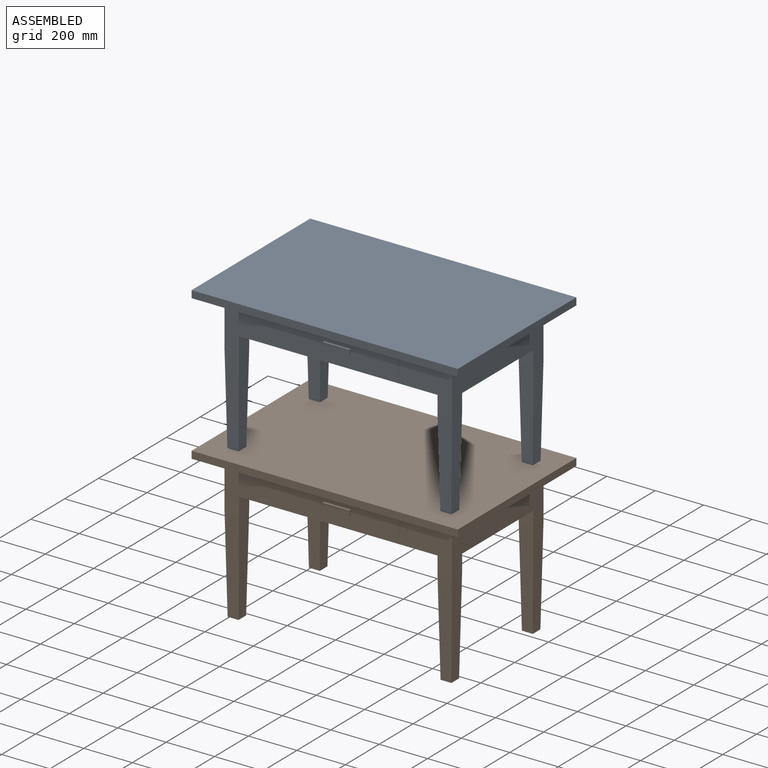
[diagram: assembled view]
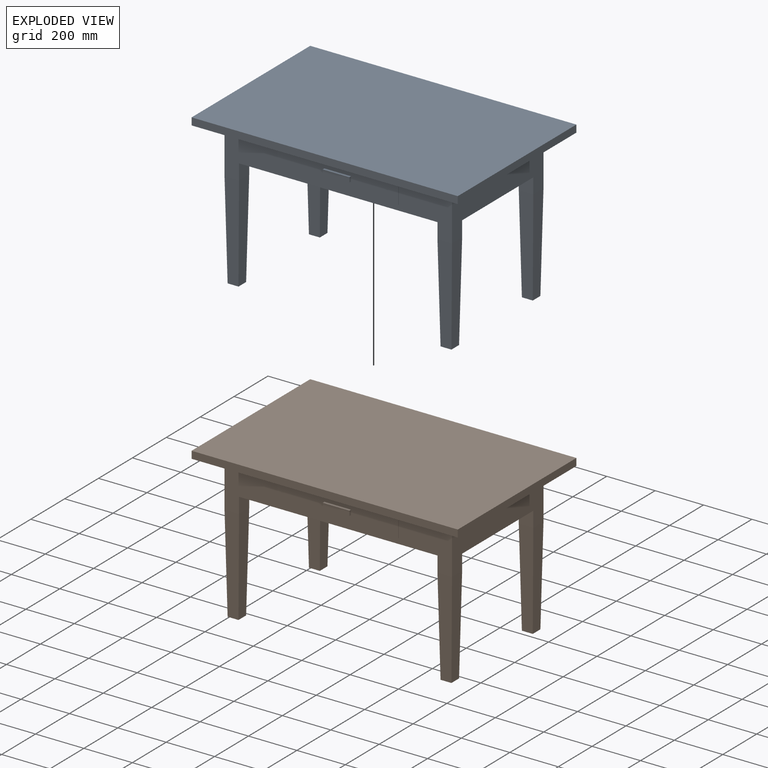
[diagram: exploded view]
GUIDED TOUR — FREECAD ASSEMBLY "table"

This assembly has 2 components, labeled P0..P1 below (a component is one placed body or linked part; the same part can appear more than once), held together by 0 modeled joints plus 1 derived contact edge. A joint is a constraint between two components; its type names the relative motion it leaves free:
  CONTACT — a derived adjacency edge — the two components touch in the source model (clearance under 2% of the assembly's diagonal); it is measured from the geometry, not a modeled constraint.
Axis/direction vectors are unit vectors and 'through' points are millimeter coordinates, both in the assembly's world frame.

MATES
  1. CONTACT "contact_0_1": P0 <-> P1, contact direction (0.000, 0.000, -1.000) through (466.25, -266.25, 600.00) mm (derived from contact, not a modeled constraint)

ASSEMBLY ORDER
  1. P1 — the base component [order verified]
  2. P0 [order verified]
Order-tag legend:
  [order verified] — this step's position reverses a verified removal order: the component was checked to insert without passing through the ones already placed.

Of the 2 components, 1 carries a construction recipe — the FreeCAD feature program (sketches with constraints, then the solid features that consume them) that regenerates the part from scratch, quoted from this document or from the linked companion document it references; the rest are supplied as boundary geometry only. The tour below walks the components in assembly order: each is shown spotlighted twice — in the assembled view, then in the exploded view, where a leader line traces a displaced component back to its assembled socket (components that stay in place when exploded have no leader line; saturated green if recipe-attached, orange if geometry-only; every other component desaturated gray) — followed by its recipe or geometry summary and the mates that hold it.
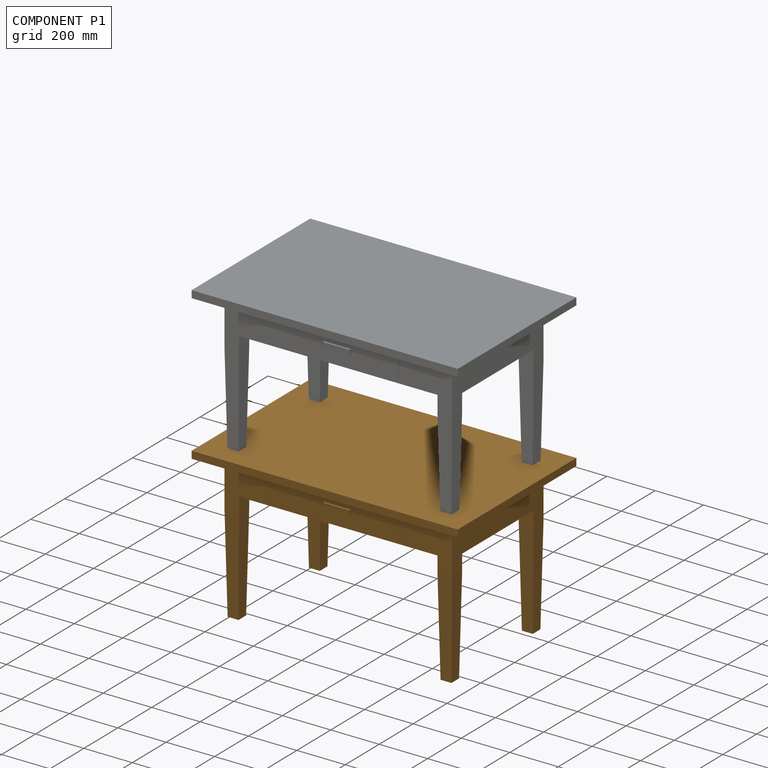
[diagram: component P1 — assembled]
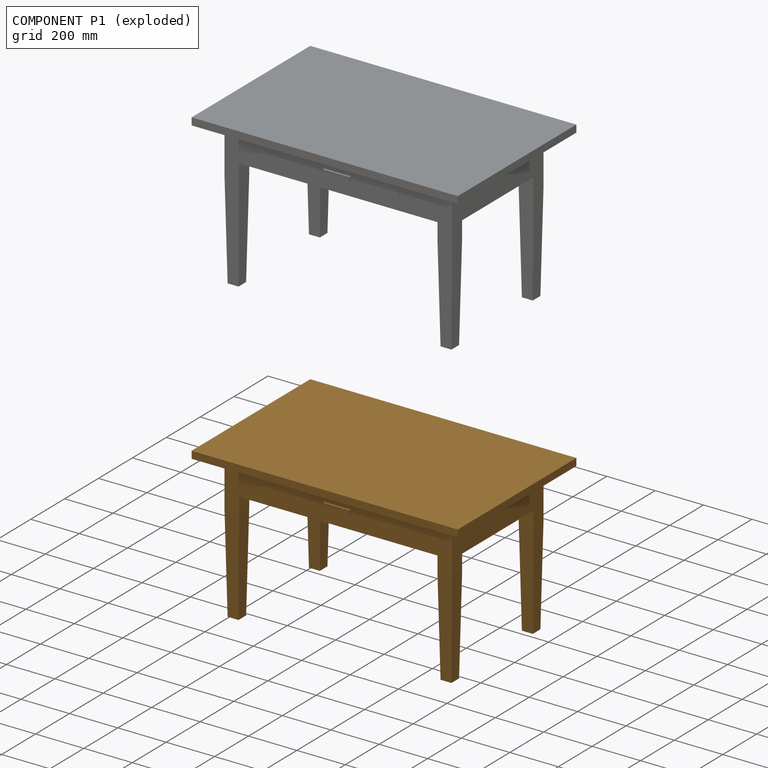
[diagram: component P1 — exploded]
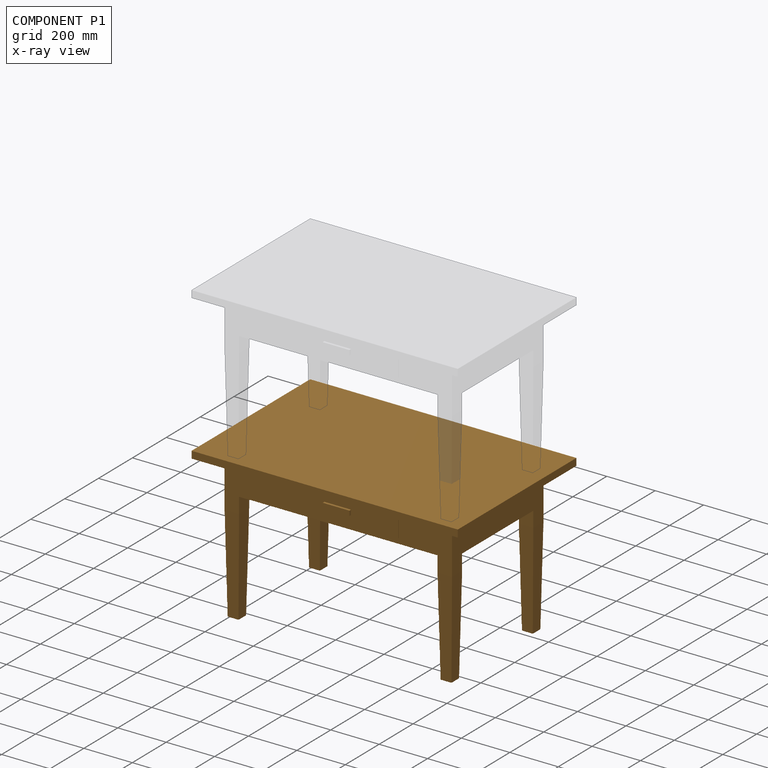
[diagram: component P1 — x-ray view]
COMPONENT P1 — geometry summary ("table"; no construction recipe available for this part):
  bounding box: 1100.0 x 700.0 x 630.0 mm
  tessellated surface: 140 triangles
  volume: 97159000 mm^3 (20% of its bounding box)
  symmetry: 2-fold rotationally symmetric about the z axis; mirror-symmetric across its x mid-plane
Held by: resting contact with P0 (derived edge).
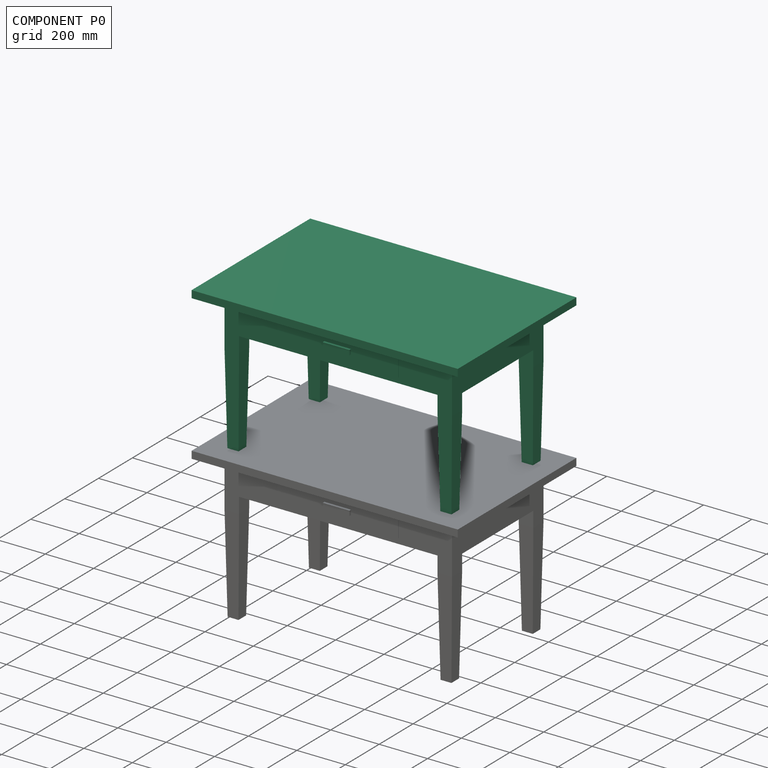
[diagram: component P0 — assembled]
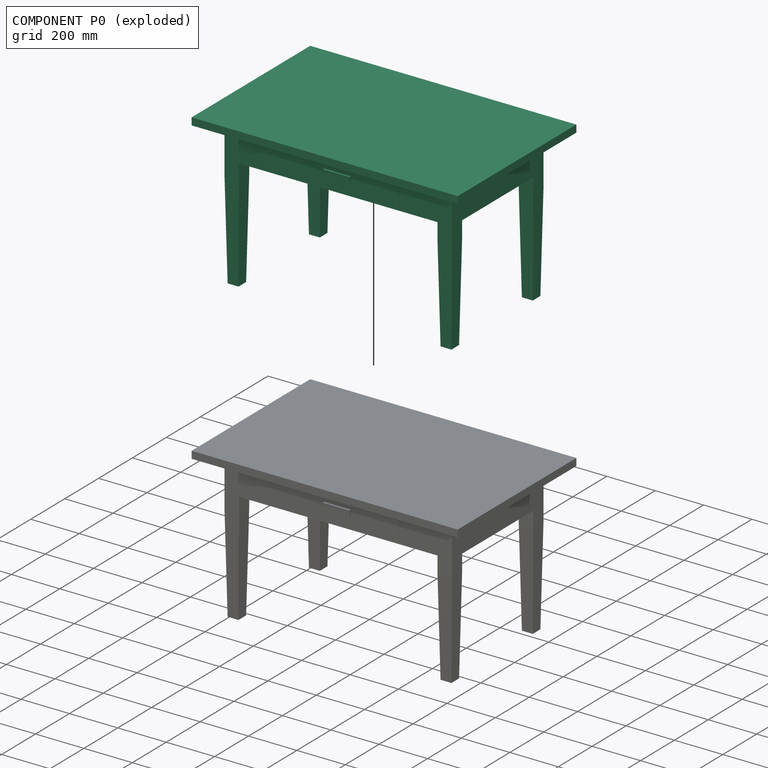
[diagram: component P0 — exploded]
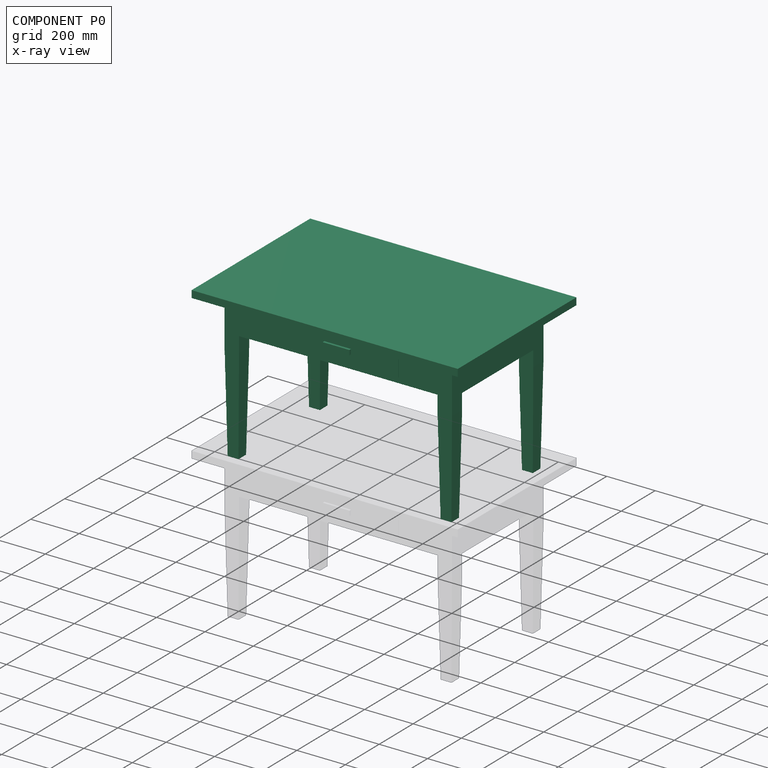
[diagram: component P0 — x-ray view]
COMPONENT P0 — recipe-attached ("table_p", modeled in this document).
Held by: resting contact with P1 (derived edge).
Construction recipe (the document's own serialized feature program — sketch geometry with constraints, then the solid features built on it; lengths are millimeters unless a unit is written):

FEATURE [Sketcher::SketchObject] Sketch
  ArcFitTolerance = 1e-06
  AttachmentSupport = -> [XY_Plane]
  FullyConstrained = true
  MakeInternals = false
  MapMode = 5
  sketch-geometry (5):
    g0: LineSegment StartX=-550 StartY=-350 StartZ=0 EndX=550 EndY=-350 EndZ=0
    g1: LineSegment StartX=550 StartY=-350 StartZ=0 EndX=550 EndY=350 EndZ=0
    g2: LineSegment StartX=550 StartY=350 StartZ=0 EndX=-550 EndY=350 EndZ=0
    g3: LineSegment StartX=-550 StartY=350 StartZ=0 EndX=-550 EndY=-350 EndZ=0
    g4: GeomPoint [constr] X=0 Y=0 Z=0
  constraints (12):
    c: Coincident(g0,g1)
    c: Coincident(g1,g2)
    c: Coincident(g2,g3)
    c: Coincident(g3,g0)
    c: Horizontal(g0)
    c: Horizontal(g2)
    c: Vertical(g1)
    c: Vertical(g3)
    c: Symmetric(g2,g0,g4)
    c: Coincident(g4,g-1)
    c: DistanceX(g2,g2) = 1100
    c: DistanceY(g3,g3) = 700
FEATURE [PartDesign::Pad] Pad
  Direction = (0,0,1)
  Length = 30
  Length2 = 10
  Profile = -> Sketch
  ReferenceAxis = -> Sketch [N_Axis]
  Refine = true
  Suppressed = false
  Type = 0
FEATURE [Sketcher::SketchObject] Sketch001
  ArcFitTolerance = 1e-06
  AttachmentSupport = -> [Pad]
  ExternalGeometry = -> [Pad]
  FullyConstrained = true
  MakeInternals = false
  MapMode = 5
  Placement = pos=(0,0,0) rot=(1,0,0;3.14159rad)
  sketch-geometry (16):
    g0: LineSegment StartX=-470 StartY=270 StartZ=0 EndX=-470 EndY=210 EndZ=0
    g1: LineSegment StartX=-470 StartY=210 StartZ=0 EndX=-410 EndY=210 EndZ=0
    g2: LineSegment StartX=-410 StartY=210 StartZ=0 EndX=-410 EndY=270 EndZ=0
    g3: LineSegment StartX=-410 StartY=270 StartZ=0 EndX=-470 EndY=270 EndZ=0
    g4: LineSegment StartX=410 StartY=270 StartZ=0 EndX=410 EndY=210 EndZ=0
    g5: LineSegment StartX=410 StartY=210 StartZ=0 EndX=470 EndY=210 EndZ=0
    g6: LineSegment StartX=470 StartY=210 StartZ=0 EndX=470 EndY=270 EndZ=0
    g7: LineSegment StartX=470 StartY=270 StartZ=0 EndX=410 EndY=270 EndZ=0
    g8: LineSegment StartX=410 StartY=-210 StartZ=0 EndX=410 EndY=-270 EndZ=0
    g9: LineSegment StartX=410 StartY=-270 StartZ=0 EndX=470 EndY=-270 EndZ=0
    g10: LineSegment StartX=470 StartY=-270 StartZ=0 EndX=470 EndY=-210 EndZ=0
    g11: LineSegment StartX=470 StartY=-210 StartZ=0 EndX=410 EndY=-210 EndZ=0
    g12: LineSegment StartX=-470 StartY=-210 StartZ=0 EndX=-470 EndY=-270 EndZ=0
    g13: LineSegment StartX=-470 StartY=-270 StartZ=0 EndX=-410 EndY=-270 EndZ=0
    g14: LineSegment StartX=-410 StartY=-270 StartZ=0 EndX=-410 EndY=-210 EndZ=0
    g15: LineSegment StartX=-410 StartY=-210 StartZ=0 EndX=-470 EndY=-210 EndZ=0
  constraints (48):
    c: Coincident(g0,g1)
    c: Coincident(g1,g2)
    c: Coincident(g2,g3)
    c: Coincident(g3,g0)
    c: Vertical(g0)
    c: Vertical(g2)
    c: Horizontal(g1)
    c: Horizontal(g3)
    c: DistanceX(g1,g1) = 60
    c: DistanceY(g2,g2) = 60
    c: DistanceX(g-4,g0) = 80
    c: DistanceY(g0,g-4) = 80
    c: Coincident(g4,g5)
    c: Coincident(g5,g6)
    c: Coincident(g6,g7)
    c: Coincident(g7,g4)
    c: Vertical(g4)
    c: Vertical(g6)
    c: Horizontal(g5)
    c: Horizontal(g7)
    c: Coincident(g8,g9)
    c: Coincident(g9,g10)
    c: Coincident(g10,g11)
    c: Coincident(g11,g8)
    c: Vertical(g8)
    c: Vertical(g10)
    c: Horizontal(g9)
    c: Horizontal(g11)
    c: Coincident(g12,g13)
    c: Coincident(g13,g14)
    c: Coincident(g14,g15)
    c: Coincident(g15,g12)
    c: Vertical(g12)
    c: Vertical(g14)
    c: Horizontal(g13)
    c: Horizontal(g15)
    c: Equal(g1,g15)
    c: Equal(g15,g11)
    c: Equal(g11,g7)
    c: Equal(g2,g6)
    c: Equal(g6,g10)
    c: Equal(g10,g14)
    c: DistanceX(g-6,g12) = 80
    c: DistanceX(g9,g-6) = 80
    c: DistanceX(g6,g-5) = 80
    c: DistanceY(g6,g-5) = 80
    c: DistanceY(g-6,g9) = 80
    c: DistanceY(g-6,g12) = 80
FEATURE [PartDesign::Pad] Pad001
  BaseFeature = -> Pad
  Direction = (0,0,-1)
  Length = 600
  Length2 = 10
  Profile = -> Sketch001
  ReferenceAxis = -> Sketch001 [N_Axis]
  Refine = true
  Suppressed = false
  Type = 0
FEATURE [Sketcher::SketchObject] Sketch002
  ArcFitTolerance = 1e-06
  AttachmentSupport = -> [Pad001]
  ExternalGeometry = -> [Pad001]
  FullyConstrained = true
  MakeInternals = false
  MapMode = 5
  Placement = pos=(0,-270,0) rot=(1,0,0;1.5708rad)
  sketch-geometry (12):
    g0: LineSegment StartX=470 StartY=-600 StartZ=0 EndX=470 EndY=-200 EndZ=0
    g1: LineSegment StartX=410 StartY=-600 StartZ=0 EndX=410 EndY=-200 EndZ=0
    g2: LineSegment StartX=410 StartY=-600 StartZ=0 EndX=417.5 EndY=-600 EndZ=0
    g3: LineSegment StartX=410 StartY=-200 StartZ=0 EndX=417.5 EndY=-600 EndZ=0
    g4: LineSegment StartX=470 StartY=-200 StartZ=0 EndX=462.5 EndY=-600 EndZ=0
    g5: LineSegment StartX=462.5 StartY=-600 StartZ=0 EndX=470 EndY=-600 EndZ=0
    g6: LineSegment StartX=-410 StartY=-600 StartZ=0 EndX=-410 EndY=-200 EndZ=0
    g7: LineSegment StartX=-470 StartY=-600 StartZ=0 EndX=-470 EndY=-200 EndZ=0
    g8: LineSegment StartX=-470 StartY=-200 StartZ=0 EndX=-462.5 EndY=-600 EndZ=0
    g9: LineSegment StartX=-417.5 StartY=-600 StartZ=0 EndX=-410 EndY=-200 EndZ=0
    g10: LineSegment StartX=-417.5 StartY=-600 StartZ=0 EndX=-410 EndY=-600 EndZ=0
    g11: LineSegment StartX=-462.5 StartY=-600 StartZ=0 EndX=-470 EndY=-600 EndZ=0
  constraints (33):
    c: Coincident(g0,g-3)
    c: Vertical(g0)
    c: DistanceY(g0,g0) = 400
    c: Coincident(g1,g-3)
    c: Vertical(g1)
    c: Equal(g1,g0)
    c: Coincident(g2,g1)
    c: Coincident(g5,g0)
    c: Coincident(g3,g1)
    c: Coincident(g4,g0)
    c: PointOnObject(g4,g5)
    c: Coincident(g2,g3)
    c: PointOnObject(g5,g4)
    c: DistanceX(g1,g2) = 7.5
    c: Equal(g5,g2)
    c: Coincident(g6,g-4)
    c: Vertical(g6)
    c: Coincident(g7,g-4)
    c: Vertical(g7)
    c: Equal(g6,g7)
    c: Equal(g7,g1)
    c: Coincident(g8,g7)
    c: PointOnObject(g8,g-4)
    c: PointOnObject(g9,g-4)
    c: Coincident(g9,g6)
    c: Coincident(g10,g9)
    c: Coincident(g10,g6)
    c: Coincident(g11,g8)
    c: Coincident(g11,g7)
    c: Equal(g10,g11)
    c: Equal(g11,g2)
    c: PointOnObject(g4,g-3)
    c: PointOnObject(g2,g-3)
FEATURE [PartDesign::Pocket] Pocket
  BaseFeature = -> Pad001
  Direction = (0,1,-2e-16)
  Length = 5
  Length2 = 5
  Profile = -> Sketch002
  ReferenceAxis = -> Sketch002 [N_Axis]
  Refine = true
  Suppressed = false
  Type = 1
FEATURE [Sketcher::SketchObject] Sketch003
  ArcFitTolerance = 1e-06
  AttachmentSupport = -> [Pocket]
  ExternalGeometry = -> [Pocket]
  FullyConstrained = true
  MakeInternals = false
  MapMode = 5
  Placement = pos=(-550,0,0) rot=(0.57735,-0.57735,-0.57735;2.0944rad)
  sketch-geometry (12):
    g0: LineSegment StartX=-270 StartY=-200 StartZ=0 EndX=-270 EndY=-600 EndZ=0
    g1: LineSegment StartX=-210 StartY=-200 StartZ=0 EndX=-210 EndY=-600 EndZ=0
    g2: LineSegment StartX=210 StartY=-200 StartZ=0 EndX=210 EndY=-600 EndZ=0
    g3: LineSegment StartX=270 StartY=-200 StartZ=0 EndX=270 EndY=-600 EndZ=0
    g4: LineSegment StartX=-270 StartY=-600 StartZ=0 EndX=-262.5 EndY=-600 EndZ=0
    g5: LineSegment StartX=210 StartY=-600 StartZ=0 EndX=217.5 EndY=-600 EndZ=0
    g6: LineSegment StartX=-270 StartY=-200 StartZ=0 EndX=-262.5 EndY=-600 EndZ=0
    g7: LineSegment StartX=-217.5 StartY=-600 StartZ=0 EndX=-210 EndY=-200 EndZ=0
    g8: LineSegment StartX=210 StartY=-200 StartZ=0 EndX=217.5 EndY=-600 EndZ=0
    g9: LineSegment StartX=262.5 StartY=-600 StartZ=0 EndX=270 EndY=-200 EndZ=0
    g10: LineSegment StartX=262.5 StartY=-600 StartZ=0 EndX=270 EndY=-600 EndZ=0
    g11: LineSegment StartX=-217.5 StartY=-600 StartZ=0 EndX=-210 EndY=-600 EndZ=0
  constraints (30):
    c: Coincident(g0,g-6)
    c: Coincident(g0,g-6)
    c: Coincident(g1,g-5)
    c: Coincident(g1,g-5)
    c: Coincident(g2,g-4)
    c: Coincident(g2,g-4)
    c: Coincident(g3,g-3)
    c: Coincident(g3,g-3)
    c: Coincident(g4,g0)
    c: Coincident(g11,g1)
    c: Coincident(g5,g2)
    c: Coincident(g10,g3)
    c: Coincident(g6,g0)
    c: PointOnObject(g7,g11)
    c: Coincident(g7,g1)
    c: Coincident(g8,g2)
    c: PointOnObject(g9,g10)
    c: Coincident(g9,g3)
    c: Coincident(g5,g8)
    c: PointOnObject(g10,g9)
    c: DistanceX(g10,g10) = 7.5
    c: Coincident(g4,g6)
    c: PointOnObject(g11,g7)
    c: Equal(g4,g11)
    c: Equal(g11,g5)
    c: Equal(g5,g10)
    c: Horizontal(g10)
    c: Horizontal(g5)
    c: Horizontal(g4)
    c: Horizontal(g11)
FEATURE [PartDesign::Pocket] Pocket001
  BaseFeature = -> Pocket
  Direction = (1,0,0)
  Length = 5
  Length2 = 5
  Profile = -> Sketch003
  ReferenceAxis = -> Sketch003 [N_Axis]
  Suppressed = false
  Type = 1
FEATURE [Sketcher::SketchObject] Sketch004
  ArcFitTolerance = 1e-06
  AttachmentSupport = -> [Pocket001]
  ExternalGeometry = -> [Pocket001]
  FullyConstrained = true
  MakeInternals = false
  MapMode = 5
  Placement = pos=(0,-270,0) rot=(1,0,0;1.5708rad)
  sketch-geometry (4):
    g0: LineSegment StartX=-410 StartY=0 StartZ=0 EndX=-410 EndY=-135 EndZ=0
    g1: LineSegment StartX=-410 StartY=-135 StartZ=0 EndX=410 EndY=-135 EndZ=0
    g2: LineSegment StartX=410 StartY=-135 StartZ=0 EndX=410 EndY=0 EndZ=0
    g3: LineSegment StartX=410 StartY=0 StartZ=0 EndX=-410 EndY=0 EndZ=0
  constraints (11):
    c: Coincident(g0,g1)
    c: Coincident(g1,g2)
    c: Coincident(g2,g3)
    c: Coincident(g3,g0)
    c: Vertical(g0)
    c: Vertical(g2)
    c: Horizontal(g1)
    c: Horizontal(g3)
    c: Coincident(g0,g-3)
    c: PointOnObject(g1,g-4)
    c: DistanceY(g2,g2) = 135
FEATURE [PartDesign::Pad] Pad002
  BaseFeature = -> Pocket001
  Direction = (0,-1,2e-16)
  Length = 10
  Length2 = 10
  Profile = -> Sketch004
  ReferenceAxis = -> Sketch004 [N_Axis]
  Suppressed = false
  Type = 3
  UpToFace = -> Pocket001 [Face21]
FEATURE [PartDesign::Pad] Pad003
  BaseFeature = -> Pad002
  Direction = (1,0,0)
  Length = 10
  Length2 = 10
  Profile = -> Pad002 [Face11]
  Suppressed = false
  Type = 3
  UpToFace = -> Pad002 [Face9]
FEATURE [PartDesign::Pad] Pad004
  BaseFeature = -> Pad003
  Direction = (-1,0,0)
  Length = 10
  Length2 = 10
  Profile = -> Pad003 [Face16]
  Suppressed = false
  Type = 3
  UpToFace = -> Pad003 [Face14]
FEATURE [Sketcher::SketchObject] Sketch005
  ArcFitTolerance = 1e-06
  AttachmentSupport = -> [Pad004]
  ExternalGeometry = -> [Pad004]
  FullyConstrained = true
  MakeInternals = false
  MapMode = 5
  Placement = pos=(0,-270,1.134e-13) rot=(1,0,0;1.5708rad)
  sketch-geometry (8):
    g0: LineSegment StartX=-250 StartY=-22.5 StartZ=0 EndX=-250 EndY=-112.5 EndZ=0
    g1: LineSegment StartX=-250 StartY=-112.5 StartZ=0 EndX=250 EndY=-112.5 EndZ=0
    g2: LineSegment StartX=250 StartY=-112.5 StartZ=0 EndX=250 EndY=-22.5 EndZ=0
    g3: LineSegment StartX=250 StartY=-22.5 StartZ=0 EndX=-250 EndY=-22.5 EndZ=0
    g4: LineSegment [constr] StartX=-250 StartY=-22.5 StartZ=0 EndX=250 EndY=-112.5 EndZ=0
    g5: LineSegment [constr] StartX=250 StartY=-22.5 StartZ=0 EndX=-2.84e-14 EndY=-67.5 EndZ=0
    g6: LineSegment [constr] StartX=-410 StartY=-1.137e-13 StartZ=0 EndX=410 EndY=-135 EndZ=0
    g7: LineSegment [constr] StartX=410 StartY=0 StartZ=0 EndX=0 EndY=-67.5 EndZ=0
  constraints (18):
    c: Coincident(g0,g1)
    c: Coincident(g1,g2)
    c: Coincident(g2,g3)
    c: Coincident(g3,g0)
    c: Vertical(g0)
    c: Horizontal(g1)
    c: DistanceY(g0,g0) = 90
    c: DistanceX(g3,g3) = 500
    c: Symmetric(g2,g0,g-2)
    c: Coincident(g4,g0)
    c: Coincident(g4,g1)
    c: Coincident(g5,g2)
    c: Symmetric(g4,g4,g5)
    c: Coincident(g6,g-6)
    c: Coincident(g6,g-5)
    c: Coincident(g7,g-5)
    c: Symmetric(g6,g6,g7)
    c: Coincident(g5,g7)
FEATURE [PartDesign::Pad] Pad005
  BaseFeature = -> Pad004
  Direction = (0,-1,2e-16)
  Length = 3
  Length2 = 10
  Profile = -> Sketch005
  ReferenceAxis = -> Sketch005 [N_Axis]
  Refine = true
  Suppressed = false
  Type = 0
FEATURE [Sketcher::SketchObject] Sketch006
  ArcFitTolerance = 1e-06
  AttachmentSupport = -> [Pad005]
  ExternalGeometry = -> [Pad005]
  FullyConstrained = true
  MakeInternals = false
  MapMode = 5
  Placement = pos=(0,-273,0) rot=(1,0,0;1.5708rad)
  sketch-geometry (8):
    g0: LineSegment StartX=-55 StartY=-57.5 StartZ=0 EndX=-55 EndY=-77.5 EndZ=0
    g1: LineSegment StartX=-55 StartY=-77.5 StartZ=0 EndX=55 EndY=-77.5 EndZ=0
    g2: LineSegment StartX=55 StartY=-77.5 StartZ=0 EndX=55 EndY=-57.5 EndZ=0
    g3: LineSegment StartX=55 StartY=-57.5 StartZ=0 EndX=-55 EndY=-57.5 EndZ=0
    g4: LineSegment [constr] StartX=-55 StartY=-57.5 StartZ=0 EndX=55 EndY=-77.5 EndZ=0
    g5: LineSegment [constr] StartX=55 StartY=-57.5 StartZ=0 EndX=-2.84e-14 EndY=-67.5 EndZ=0
    g6: LineSegment [constr] StartX=-250 StartY=-22.5 StartZ=0 EndX=250 EndY=-112.5 EndZ=0
    g7: LineSegment [constr] StartX=250 StartY=-22.5 StartZ=0 EndX=-2.84e-14 EndY=-67.5 EndZ=0
  constraints (18):
    c: Coincident(g0,g1)
    c: Coincident(g1,g2)
    c: Coincident(g2,g3)
    c: Coincident(g3,g0)
    c: Vertical(g0)
    c: Horizontal(g1)
    c: DistanceX(g3,g3) = 110
    c: DistanceY(g2,g2) = 20
    c: Coincident(g4,g0)
    c: Coincident(g4,g1)
    c: Coincident(g5,g2)
    c: Symmetric(g2,g0,g-2)
    c: Symmetric(g0,g1,g5)
    c: Coincident(g6,g-4)
    c: Coincident(g6,g-3)
    c: Coincident(g7,g-3)
    c: Symmetric(g6,g6,g7)
    c: Coincident(g5,g7)
FEATURE [PartDesign::Pad] Pad006
  BaseFeature = -> Pad005
  Direction = (0,-1,2e-16)
  Length = 10
  Length2 = 10
  Profile = -> Sketch006
  ReferenceAxis = -> Sketch006 [N_Axis]
  Refine = true
  Suppressed = false
  Type = 0
FEATURE [PartDesign::Body] Body  label="table_b"
  AllowCompound = false
  Group = -> [Sketch,Pad,Sketch001,Pad001,Sketch002,Pocket,Sketch003,Pocket001,Sketch004,Pad002,Pad003,Pad004,Sketch005,Pad005,Sketch006,Pad006]
  Origin = -> Origin
  Placement = pos=(0,0,600) rot=(0,0,1;0rad)
  Tip = -> Pad006
PROVENANCE & LICENSES
Assembly and component geometry: a FreeCAD (.FCStd) document from a public repository crawl; components, placements and joints were extracted with FreeCAD and each solid tessellated.
Construction recipes: the document's own serialized feature recipes (and, for linked parts, the recipes of companion documents from the same project).
License: as declared in the source repository (recorded in the dataset sidecar).
Joints: native FreeCAD joints and A2plus constraints are mapped to standard mate types; edges marked 'derived from contact' connect touching components and are measured from the geometry, not modeled.
Verification: 1 of this assembly's 2 components carries a construction recipe (1 from this document itself); the rest are geometry-only. Every component's tessellation passed the extraction mesh gates (mesh-volume checksum against the B-rep where available, bounding-box inflation <= 2%).
Renders: orthographic iso camera (az 35 / el 25); the floor grid conveys scale (grid pitch printed in each image; no ruler). In the exploded view each component is displaced by its stored offset vector: the offsets alone carry the explosion direction (mate normal/axis signs are not orientation cues and do not encode it), and separation distances are assigned per mate-chain, not proportionally to assembly-order depth.
